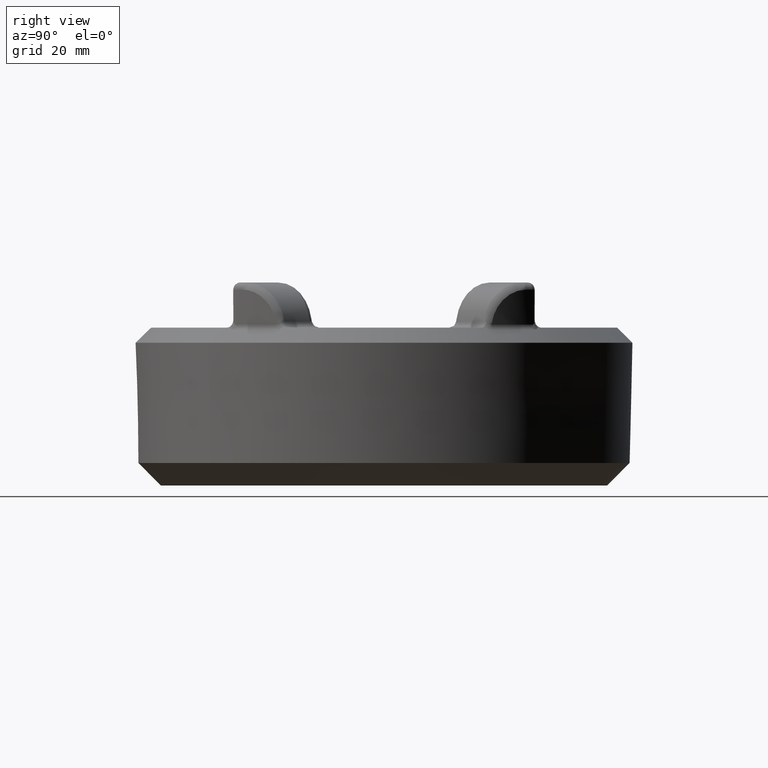
[diagram: clean part render]
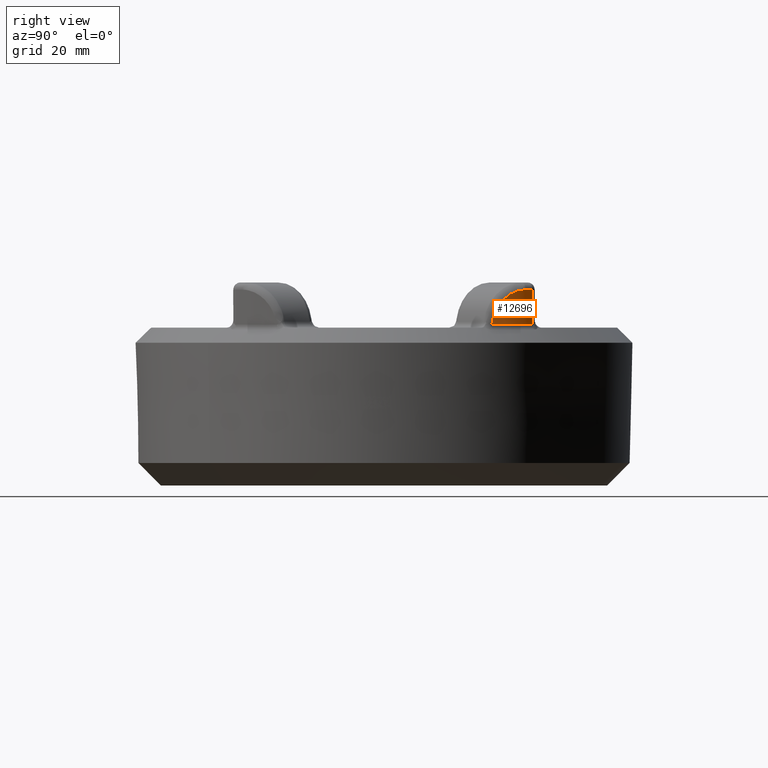
[diagram: same view with one face highlighted and labeled with its STEP entity id]
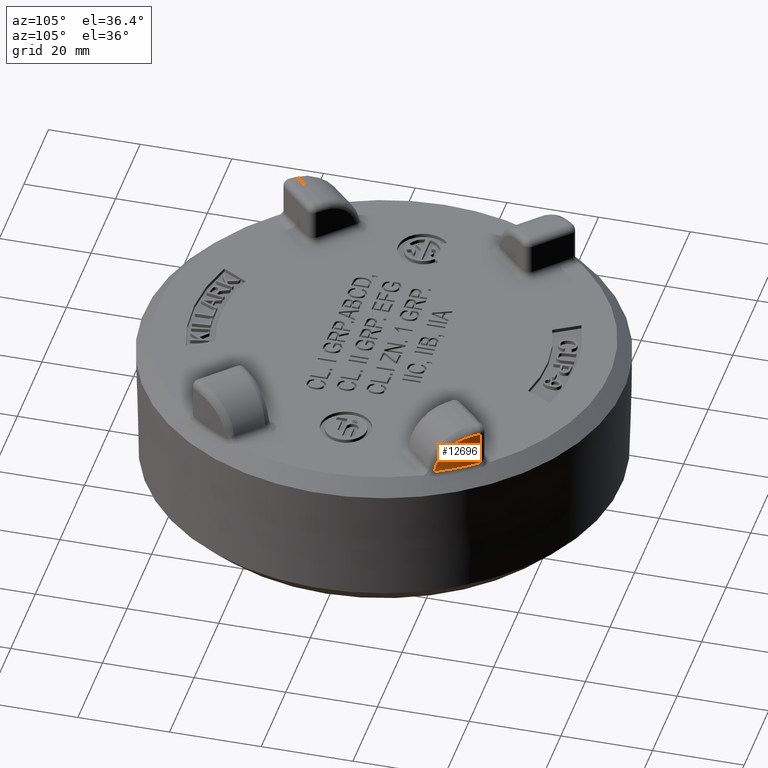
[diagram: same view with one face highlighted and labeled with its STEP entity id]
A machine part, right view. The second image highlights one B-rep face of the part: STEP entity #12696.
A second angle (auxiliary view) of the same face is appended — the face is thin or edge-on in the first view.
In plain terms, the highlighted cylindrical surface (partial cylindrical patch) has radius 49.2125 mm, axis along (0, -0, -1).
Its self-contained STEP definition (entity closure, byte-faithful):
#195=CYLINDRICAL_SURFACE('',#13541,49.2125);
#413=B_SPLINE_CURVE_WITH_KNOTS('',3,(#20675,#20676,#20677,#20678,#20679,
#20680,#20681,#20682,#20683,#20684,#20685,#20686,#20687,#20688,#20689,#20690,
#20691,#20692,#20693,#20694,#20695,#20696,#20697,#20698,#20699,#20700,#20701,
#20702,#20703,#20704,#20705,#20706,#20707,#20708,#20709,#20710,#20711,#20712,
#20713,#20714,#20715,#20716,#20717,#20718,#20719,#20720,#20721,#20722,#20723,
#20724,#20725,#20726,#20727,#20728,#20729,#20730,#20731,#20732,#20733,#20734,
#20735,#20736,#20737,#20738,#20739,#20740,#20741,#20742,#20743,#20744,#20745,
#20746,#20747,#20748,#20749,#20750,#20751,#20752,#20753,#20754,#20755,#20756,
#20757,#20758,#20759,#20760,#20761,#20762,#20763,#20764,#20765,#20766,#20767,
#20768,#20769,#20770,#20771,#20772,#20773,#20774,#20775,#20776,#20777,#20778,
#20779,#20780,#20781,#20782,#20783),.UNSPECIFIED.,.F.,.F.,(4,3,3,3,3,3,
3,3,3,3,3,3,3,3,3,3,3,3,3,3,3,3,3,3,3,3,3,3,3,3,3,3,3,3,3,3,4),(0.,0.0731924878612152,
0.125,0.127678607962556,0.170030440576932,0.1875,0.19142800054116,0.238500032358951,
0.25,0.255112552641396,0.31865548640692,0.375,0.382062267555921,0.424330408491551,
0.4375,0.445311819438417,0.478967341767209,0.5,0.508397196681622,0.552108934456136,
0.595796895937653,0.625,0.634022718082159,0.679106846099065,0.696542330425621,
0.740831621769387,0.749999999999999,0.758942668769086,0.805630398924568,
0.821178942283484,0.867927961153773,0.874999999999999,0.883288006746758,
0.926264167796936,0.937499999999999,0.945225257772663,1.),.UNSPECIFIED.);
#1119=LINE('',#20787,#2484);
#2484=VECTOR('',#14819,7.36973853094342);
#3486=FACE_OUTER_BOUND('',#4321,.T.);
#4321=EDGE_LOOP('',(#9015,#9016,#9017,#9018));
#5143=CIRCLE('',#13542,49.2125);
#5144=CIRCLE('',#13543,49.2125);
#5813=VERTEX_POINT('',#20673);
#5814=VERTEX_POINT('',#20674);
#5815=VERTEX_POINT('',#20784);
#5816=VERTEX_POINT('',#20786);
#7074=EDGE_CURVE('',#5813,#5814,#413,.T.);
#7075=EDGE_CURVE('',#5814,#5815,#5143,.T.);
#7076=EDGE_CURVE('',#5815,#5816,#1119,.F.);
#7077=EDGE_CURVE('',#5816,#5813,#5144,.F.);
#9015=ORIENTED_EDGE('',*,*,#7074,.T.);
#9016=ORIENTED_EDGE('',*,*,#7075,.T.);
#9017=ORIENTED_EDGE('',*,*,#7076,.T.);
#9018=ORIENTED_EDGE('',*,*,#7077,.T.);
#12696=ADVANCED_FACE('',(#3486),#195,.T.);
#13541=AXIS2_PLACEMENT_3D('',#20672,#14815,#14816);
#13542=AXIS2_PLACEMENT_3D('',#20785,#14817,#14818);
#13543=AXIS2_PLACEMENT_3D('',#20788,#14820,#14821);
#14815=DIRECTION('center_axis',(3.76763285115757E-18,-3.11148260827206E-16,
-1.));
#14816=DIRECTION('ref_axis',(-0.707106781186548,0.707106781186547,-2.22679163923392E-16));
#14817=DIRECTION('center_axis',(-4.09044806813175E-18,3.14790007924533E-16,
1.));
#14818=DIRECTION('ref_axis',(-0.707106781186548,0.707106781186547,-2.25482532820272E-16));
#14819=DIRECTION('',(2.77516697999645E-18,-3.16793658716751E-16,-1.));
#14820=DIRECTION('center_axis',(-8.74002435741233E-17,2.63136933810006E-16,
1.));
#14821=DIRECTION('ref_axis',(-0.707106781186548,0.707106781186547,-2.47867215186309E-16));
#20672=CARTESIAN_POINT('Origin',(-1.47710245433534E-14,1.83053218235193E-14,
23.8353267122275));
#20673=CARTESIAN_POINT('',(39.1222368708586,29.8549952013132,22.3113267122275));
#20674=CARTESIAN_POINT('',(43.6449498900757,22.7373813281573,14.9415882249083));
#20675=CARTESIAN_POINT('Ctrl Pts',(39.1222368708586,29.8549952013132,22.3113267122275));
#20676=CARTESIAN_POINT('Ctrl Pts',(39.3057277075907,29.6145472652187,22.3113267122275));
#20677=CARTESIAN_POINT('Ctrl Pts',(39.485387974185,29.3745199641736,22.295643088243));
#20678=CARTESIAN_POINT('Ctrl Pts',(39.6613824061725,29.1349373383574,22.2647390445902));
#20679=CARTESIAN_POINT('Ctrl Pts',(39.7859557597773,28.9653546372099,22.242864373248));
#20680=CARTESIAN_POINT('Ctrl Pts',(39.9086921893835,28.7959947634445,22.2133628762831));
#20681=CARTESIAN_POINT('Ctrl Pts',(40.0296462987616,28.6268671454434,22.176383609792));
#20682=CARTESIAN_POINT('Ctrl Pts',(40.0358999987968,28.6181227266214,22.1744716678056));
#20683=CARTESIAN_POINT('Ctrl Pts',(40.0421489701869,28.6093788777387,22.1725397056653));
#20684=CARTESIAN_POINT('Ctrl Pts',(40.0483931852787,28.6006356489986,22.1705877560223));
#20685=CARTESIAN_POINT('Ctrl Pts',(40.1471213142449,28.462395277399,22.1397252163346));
#20686=CARTESIAN_POINT('Ctrl Pts',(40.2446592894528,28.3243102654117,22.1038618525535));
#20687=CARTESIAN_POINT('Ctrl Pts',(40.3410112231096,28.1864070226642,22.0628987702573));
#20688=CARTESIAN_POINT('Ctrl Pts',(40.380755095491,28.1295237960103,22.0460020515996));
#20689=CARTESIAN_POINT('Ctrl Pts',(40.4202973238455,28.072671453517,22.0282382267483));
#20690=CARTESIAN_POINT('Ctrl Pts',(40.4596387940794,28.0158517298972,22.0096028800621));
#20691=CARTESIAN_POINT('Ctrl Pts',(40.4684846563377,28.0030759122751,22.0054127542498));
#20692=CARTESIAN_POINT('Ctrl Pts',(40.4773224422881,27.9902987509681,22.0011775613946));
#20693=CARTESIAN_POINT('Ctrl Pts',(40.4861521940232,27.9775202038638,21.9968971505697));
#20694=CARTESIAN_POINT('Ctrl Pts',(40.5919654061811,27.8243857606339,21.945601934993));
#20695=CARTESIAN_POINT('Ctrl Pts',(40.6966253890578,27.6710503240734,21.887808825831));
#20696=CARTESIAN_POINT('Ctrl Pts',(40.799081977063,27.5191625712229,21.8240668008474));
#20697=CARTESIAN_POINT('Ctrl Pts',(40.8241127097756,27.4820555211255,21.8084942581638));
#20698=CARTESIAN_POINT('Ctrl Pts',(40.8490119133798,27.4450349687224,21.7925668822347));
#20699=CARTESIAN_POINT('Ctrl Pts',(40.8737642677255,27.4081250878417,21.7762931093751));
#20700=CARTESIAN_POINT('Ctrl Pts',(40.8847684477841,27.3917160234965,21.769058261155));
#20701=CARTESIAN_POINT('Ctrl Pts',(40.8957441066421,27.3753280839276,21.7617551347049));
#20702=CARTESIAN_POINT('Ctrl Pts',(40.9066900008618,27.3589632363862,21.7543844267866));
#20703=CARTESIAN_POINT('Ctrl Pts',(41.0427344155,27.1555676928405,21.66277531527));
#20704=CARTESIAN_POINT('Ctrl Pts',(41.1741806204965,26.9557391052431,21.5607256550639));
#20705=CARTESIAN_POINT('Ctrl Pts',(41.3012718564426,26.759579579784,21.4485637382782));
#20706=CARTESIAN_POINT('Ctrl Pts',(41.4139656438864,26.5856418593534,21.3491080117253));
#20707=CARTESIAN_POINT('Ctrl Pts',(41.5232353113244,26.4145891014867,21.2417018614183));
#20708=CARTESIAN_POINT('Ctrl Pts',(41.6292525206042,26.2464372110962,21.1262030983042));
#20709=CARTESIAN_POINT('Ctrl Pts',(41.6425408045864,26.2253609152115,21.1117263885862));
#20710=CARTESIAN_POINT('Ctrl Pts',(41.6557770474403,26.2043316966251,21.0971237265707));
#20711=CARTESIAN_POINT('Ctrl Pts',(41.6689620644401,26.1833488446752,21.0823943993136));
#20712=CARTESIAN_POINT('Ctrl Pts',(41.747875267936,26.0577650804767,20.9942383962363));
#20713=CARTESIAN_POINT('Ctrl Pts',(41.8249550442968,25.9338406007848,20.901548625465));
#20714=CARTESIAN_POINT('Ctrl Pts',(41.900206990035,25.8116839355493,20.8041901326627));
#20715=CARTESIAN_POINT('Ctrl Pts',(41.9236534289758,25.7736232745981,20.7738559009766));
#20716=CARTESIAN_POINT('Ctrl Pts',(41.9469222866741,25.7357343797403,20.7430681249526));
#20717=CARTESIAN_POINT('Ctrl Pts',(41.9700133421974,25.6980209742445,20.7118218611415));
#20718=CARTESIAN_POINT('Ctrl Pts',(41.9837102861212,25.6756504767274,20.6932874843645));
#20719=CARTESIAN_POINT('Ctrl Pts',(41.9973454403102,25.6533404616872,20.6745928555502));
#20720=CARTESIAN_POINT('Ctrl Pts',(42.0109166492251,25.6310951488805,20.6557390442897));
#20721=CARTESIAN_POINT('Ctrl Pts',(42.0693852464919,25.5352560645572,20.5745115055755));
#20722=CARTESIAN_POINT('Ctrl Pts',(42.1266656481637,25.440619055315,20.49032541209));
#20723=CARTESIAN_POINT('Ctrl Pts',(42.1824337971643,25.3478120411551,20.4037128261623));
#20724=CARTESIAN_POINT('Ctrl Pts',(42.217285504612,25.2898132916079,20.3495852181971));
#20725=CARTESIAN_POINT('Ctrl Pts',(42.2515468920069,25.2325290385209,20.2945109981828));
#20726=CARTESIAN_POINT('Ctrl Pts',(42.2851428746445,25.1761081498572,20.238628442332));
#20727=CARTESIAN_POINT('Ctrl Pts',(42.2985559235705,25.1535823571676,20.2163175766602));
#20728=CARTESIAN_POINT('Ctrl Pts',(42.3118775872807,25.1311695496991,20.1938584416795));
#20729=CARTESIAN_POINT('Ctrl Pts',(42.3251039011426,25.1088776292607,20.1712580168265));
#20730=CARTESIAN_POINT('Ctrl Pts',(42.3939536834185,24.9928366911187,20.0536111541621));
#20731=CARTESIAN_POINT('Ctrl Pts',(42.4602174013402,24.8800742967912,19.9321335871145));
#20732=CARTESIAN_POINT('Ctrl Pts',(42.5239369345992,24.7706967445519,19.806741464335));
#20733=CARTESIAN_POINT('Ctrl Pts',(42.5876218086484,24.6613786864637,19.6814175465732));
#20734=CARTESIAN_POINT('Ctrl Pts',(42.6487654808047,24.555441704448,19.5521830525448));
#20735=CARTESIAN_POINT('Ctrl Pts',(42.7074361818109,24.4529587961206,19.4189844445076));
#20736=CARTESIAN_POINT('Ctrl Pts',(42.7466544590843,24.3844543629768,19.3299481818952));
#20737=CARTESIAN_POINT('Ctrl Pts',(42.7847682998534,24.3174926036497,19.2391412941565));
#20738=CARTESIAN_POINT('Ctrl Pts',(42.8218039294186,24.2520873626155,19.1465562375461));
#20739=CARTESIAN_POINT('Ctrl Pts',(42.8332466186564,24.2318794747935,19.1179507556551));
#20740=CARTESIAN_POINT('Ctrl Pts',(42.8445918547079,24.211810517447,19.0891579890546));
#20741=CARTESIAN_POINT('Ctrl Pts',(42.8558402743453,24.1918810759802,19.0601773490441));
#20742=CARTESIAN_POINT('Ctrl Pts',(42.9120456424288,24.0922989453833,18.9153687811215));
#20743=CARTESIAN_POINT('Ctrl Pts',(42.9658324126439,23.9962018329571,18.7658657697369));
#20744=CARTESIAN_POINT('Ctrl Pts',(43.0167787495418,23.9045292540327,18.6126633327022));
#20745=CARTESIAN_POINT('Ctrl Pts',(43.0364813388465,23.8690765152682,18.5534150161171));
#20746=CARTESIAN_POINT('Ctrl Pts',(43.0557592990333,23.8342852699882,18.493613873148));
#20747=CARTESIAN_POINT('Ctrl Pts',(43.0745890450329,23.8002087096169,18.4333189838123));
#20748=CARTESIAN_POINT('Ctrl Pts',(43.122420013814,23.7136480679961,18.280159033087));
#20749=CARTESIAN_POINT('Ctrl Pts',(43.1673570519304,23.6317019809996,18.1238119810494));
#20750=CARTESIAN_POINT('Ctrl Pts',(43.2093050198389,23.5547493901553,17.9651182862644));
#20751=CARTESIAN_POINT('Ctrl Pts',(43.2179887179547,23.5388193439234,17.932266918079));
#20752=CARTESIAN_POINT('Ctrl Pts',(43.2265444101795,23.5231031415654,17.8993150429626));
#20753=CARTESIAN_POINT('Ctrl Pts',(43.2349713889495,23.5076039113132,17.8662701893999));
#20754=CARTESIAN_POINT('Ctrl Pts',(43.2431909102181,23.4924862450438,17.8340388424265));
#20755=CARTESIAN_POINT('Ctrl Pts',(43.251291887631,23.4775678067849,17.8017011841266));
#20756=CARTESIAN_POINT('Ctrl Pts',(43.2592732868707,23.4628521484878,17.7692636052398));
#20757=CARTESIAN_POINT('Ctrl Pts',(43.3009424377232,23.3860248946362,17.5999140554498));
#20758=CARTESIAN_POINT('Ctrl Pts',(43.3393501478117,23.3147281593274,17.4278398632028));
#20759=CARTESIAN_POINT('Ctrl Pts',(43.3745563788756,23.249044402964,17.253045737526));
#20760=CARTESIAN_POINT('Ctrl Pts',(43.3862812069702,23.2271695606791,17.1948335684418));
#20761=CARTESIAN_POINT('Ctrl Pts',(43.397651172983,23.2059169105845,17.1363198566405));
#20762=CARTESIAN_POINT('Ctrl Pts',(43.408669126441,23.1852884588658,17.0775051739822));
#20763=CARTESIAN_POINT('Ctrl Pts',(43.4417962498141,23.1232659364721,16.9006700424865));
#20764=CARTESIAN_POINT('Ctrl Pts',(43.4717394644001,23.066889209162,16.7211127909332));
#20765=CARTESIAN_POINT('Ctrl Pts',(43.4984497089931,23.0164087622633,16.5386590379129));
#20766=CARTESIAN_POINT('Ctrl Pts',(43.5024903475331,23.0087722451755,16.5110580302301));
#20767=CARTESIAN_POINT('Ctrl Pts',(43.5064570447864,23.0012705836013,16.4833907732995));
#20768=CARTESIAN_POINT('Ctrl Pts',(43.5103496781638,22.9939045593477,16.4556567040279));
#20769=CARTESIAN_POINT('Ctrl Pts',(43.5149116117725,22.9852720192786,16.4231540328413));
#20770=CARTESIAN_POINT('Ctrl Pts',(43.5193737466711,22.9768221285937,16.3905498044307));
#20771=CARTESIAN_POINT('Ctrl Pts',(43.5237356813002,22.968556519238,16.3578414631841));
#20772=CARTESIAN_POINT('Ctrl Pts',(43.5463538102232,22.9256964963516,16.1882374819074));
#20773=CARTESIAN_POINT('Ctrl Pts',(43.5662786537354,22.8877894978884,16.0158306005411));
#20774=CARTESIAN_POINT('Ctrl Pts',(43.5832951434074,22.8553397732021,15.8422070360577));
#20775=CARTESIAN_POINT('Ctrl Pts',(43.5877439917449,22.8468560079541,15.7968143069408));
#20776=CARTESIAN_POINT('Ctrl Pts',(43.5919939884716,22.8387453865578,15.7513386503882));
#20777=CARTESIAN_POINT('Ctrl Pts',(43.5960411657395,22.8310171866317,15.7058089401969));
#20778=CARTESIAN_POINT('Ctrl Pts',(43.5988238245655,22.8257036205809,15.6745047393878));
#20779=CARTESIAN_POINT('Ctrl Pts',(43.6015123181553,22.8205675643878,15.6431700407258));
#20780=CARTESIAN_POINT('Ctrl Pts',(43.6041053363437,22.8156120678584,15.6118146493733));
#20781=CARTESIAN_POINT('Ctrl Pts',(43.6224907296911,22.7804758882005,15.3894941094881));
#20782=CARTESIAN_POINT('Ctrl Pts',(43.6360751375711,22.7544187290562,15.1661330784968));
#20783=CARTESIAN_POINT('Ctrl Pts',(43.6449507307134,22.7373799994791,14.9415884422036));
#20784=CARTESIAN_POINT('',(38.0580270258329,31.2002681903694,14.9415881812841));
#20785=CARTESIAN_POINT('Origin',(-1.47375162018946E-14,1.55380505473643E-14,
14.9415881812841));
#20786=CARTESIAN_POINT('',(38.0580270258329,31.2002681903694,22.3113267122275));
#20787=CARTESIAN_POINT('',(38.0580270258329,31.2002681903694,22.3113267122275));
#20788=CARTESIAN_POINT('Origin',(-1.47652826708882E-14,1.78311318740186E-14,
22.3113267122275));